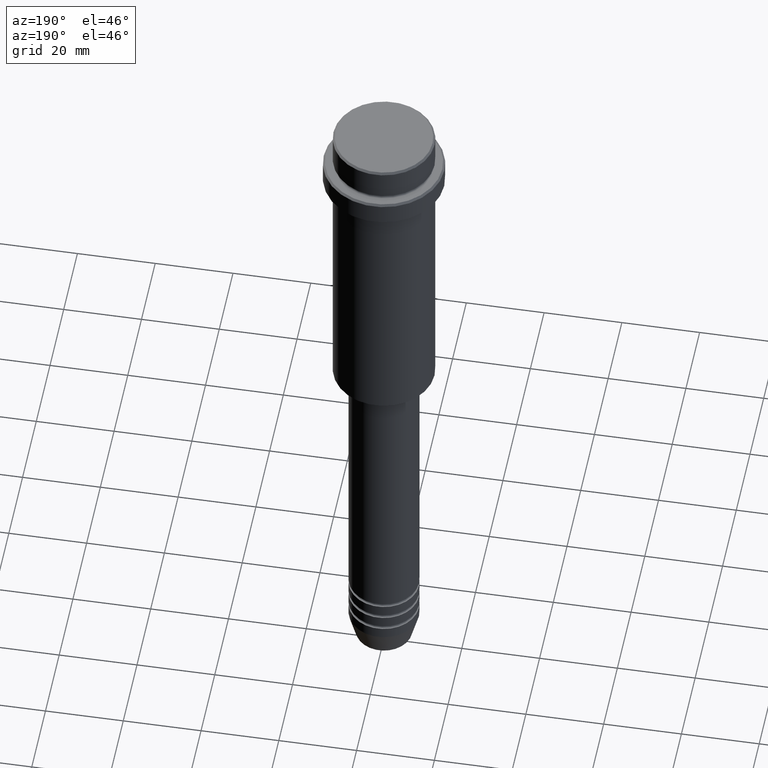
[diagram: clean part render]
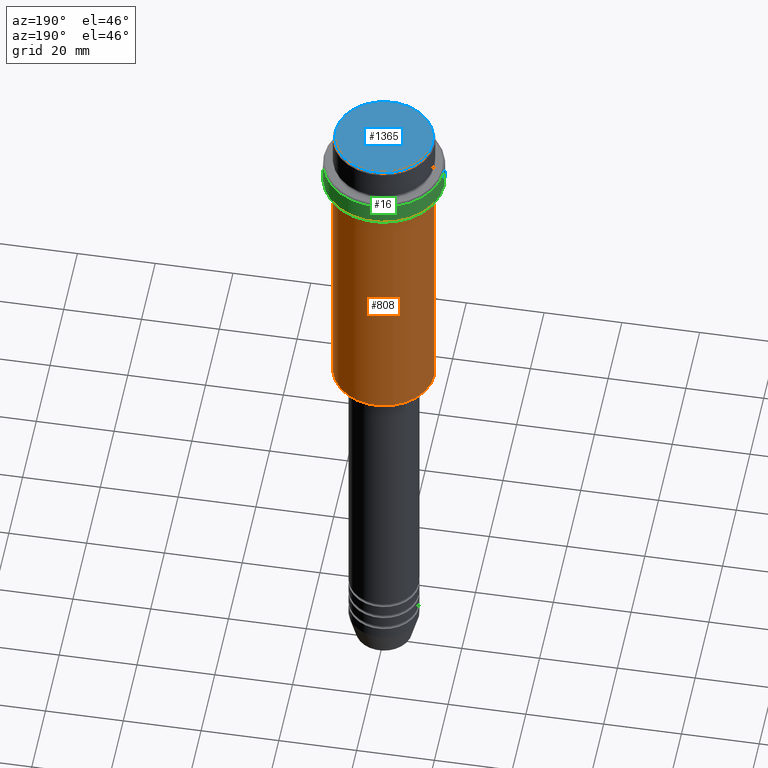
[diagram: same view with three faces highlighted in distinct colors, each labeled with its STEP entity id]
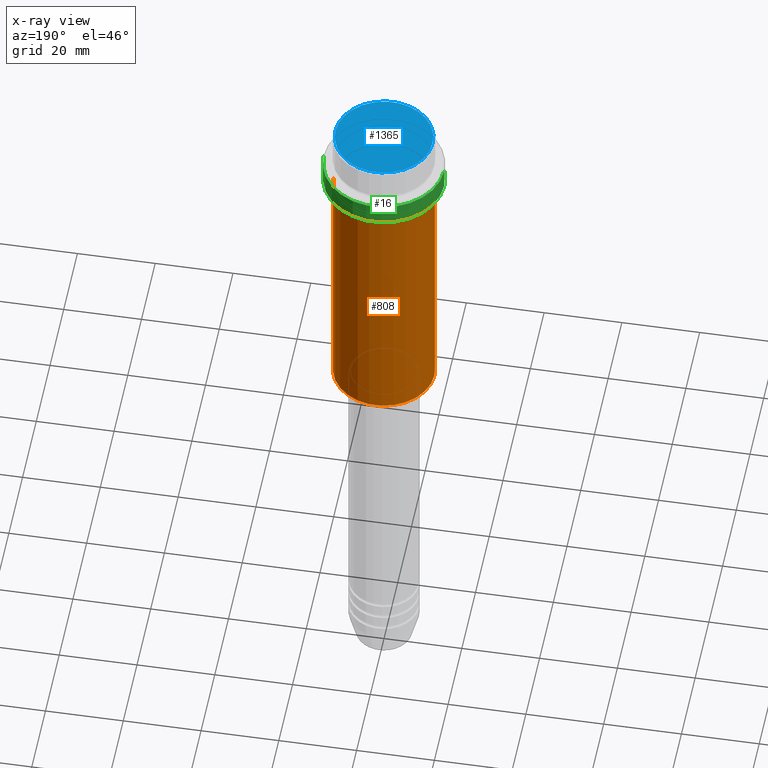
[diagram: x-ray of the same camera — body ghosted, the three highlighted faces saturated]
A machine part, auxiliary view with three faces highlighted in distinct colors.
The next image is the same camera in x-ray (body ghosted, the three faces saturated) — at least one of them is partly hidden behind the body in this view.
Their STEP definitions:

[orange] entity #808 — the highlighted cylindrical surface (partial cylindrical patch) has radius 13 mm, axis along (-0, -0, 1).
#32 = EDGE_CURVE ( 'NONE', #1057, #1030, #1251, .T. ) ;
#71 = VECTOR ( 'NONE', #259, 1000.000000000000000 ) ;
#95 = AXIS2_PLACEMENT_3D ( 'NONE', #1227, #1106, #782 ) ;
#259 = DIRECTION ( 'NONE',  ( -0.000000000000000000, -0.000000000000000000, 1.000000000000000000 ) ) ;
#293 = CIRCLE ( 'NONE', #1409, 13.00000000000000000 ) ;
#346 = ORIENTED_EDGE ( 'NONE', *, *, #960, .T. ) ;
#349 = CIRCLE ( 'NONE', #1112, 13.00000000000000000 ) ;
#362 = CARTESIAN_POINT ( 'NONE',  ( -13.00000000000000000, 1.592040838891559095E-15, 0.000000000000000000 ) ) ;
#375 = DIRECTION ( 'NONE',  ( -0.000000000000000000, -0.000000000000000000, 1.000000000000000000 ) ) ;
#424 = ORIENTED_EDGE ( 'NONE', *, *, #703, .F. ) ;
#438 = CARTESIAN_POINT ( 'NONE',  ( 13.00000000000000000, 0.000000000000000000, -84.50000000000000000 ) ) ;
#481 = CARTESIAN_POINT ( 'NONE',  ( 13.00000000000000000, 0.000000000000000000, -16.00000000000000000 ) ) ;
#574 = CYLINDRICAL_SURFACE ( 'NONE', #95, 13.00000000000000000 ) ;
#595 = LINE ( 'NONE', #1028, #1416 ) ;
#596 = VERTEX_POINT ( 'NONE', #481 ) ;
#597 = EDGE_CURVE ( 'NONE', #1113, #596, #595, .T. ) ;
#608 = DIRECTION ( 'NONE',  ( 1.000000000000000000, 0.000000000000000000, 0.000000000000000000 ) ) ;
#624 = CARTESIAN_POINT ( 'NONE',  ( -13.00000000000000000, 1.592040838891559095E-15, -16.00000000000000000 ) ) ;
#703 = EDGE_CURVE ( 'NONE', #596, #1030, #293, .T. ) ;
#718 = CARTESIAN_POINT ( 'NONE',  ( 0.000000000000000000, 0.000000000000000000, -16.00000000000000000 ) ) ;
#781 = EDGE_LOOP ( 'NONE', ( #346, #1017, #424, #1196 ) ) ;
#782 = DIRECTION ( 'NONE',  ( 1.000000000000000000, 0.000000000000000000, 0.000000000000000000 ) ) ;
#808 = ADVANCED_FACE ( 'NONE', ( #1352 ), #574, .T. ) ;
#825 = DIRECTION ( 'NONE',  ( -1.000000000000000000, 0.000000000000000000, 0.000000000000000000 ) ) ;
#882 = CARTESIAN_POINT ( 'NONE',  ( -13.00000000000000000, 1.592040838891559095E-15, -84.50000000000000000 ) ) ;
#960 = EDGE_CURVE ( 'NONE', #1113, #1057, #349, .T. ) ;
#1017 = ORIENTED_EDGE ( 'NONE', *, *, #32, .T. ) ;
#1028 = CARTESIAN_POINT ( 'NONE',  ( 13.00000000000000000, 0.000000000000000000, 0.000000000000000000 ) ) ;
#1030 = VERTEX_POINT ( 'NONE', #624 ) ;
#1057 = VERTEX_POINT ( 'NONE', #882 ) ;
#1106 = DIRECTION ( 'NONE',  ( -0.000000000000000000, -0.000000000000000000, 1.000000000000000000 ) ) ;
#1112 = AXIS2_PLACEMENT_3D ( 'NONE', #1266, #375, #825 ) ;
#1113 = VERTEX_POINT ( 'NONE', #438 ) ;
#1147 = DIRECTION ( 'NONE',  ( -0.000000000000000000, -0.000000000000000000, 1.000000000000000000 ) ) ;
#1196 = ORIENTED_EDGE ( 'NONE', *, *, #597, .F. ) ;
#1217 = DIRECTION ( 'NONE',  ( -0.000000000000000000, -0.000000000000000000, 1.000000000000000000 ) ) ;
#1227 = CARTESIAN_POINT ( 'NONE',  ( 0.000000000000000000, 0.000000000000000000, 0.000000000000000000 ) ) ;
#1251 = LINE ( 'NONE', #362, #71 ) ;
#1266 = CARTESIAN_POINT ( 'NONE',  ( 0.000000000000000000, 0.000000000000000000, -84.50000000000000000 ) ) ;
#1352 = FACE_OUTER_BOUND ( 'NONE', #781, .T. ) ;
#1409 = AXIS2_PLACEMENT_3D ( 'NONE', #718, #1147, #608 ) ;
#1416 = VECTOR ( 'NONE', #1217, 1000.000000000000000 ) ;

[blue] entity #1365 — the highlighted planar face has unit normal (0, -0, 1).
#59 = EDGE_CURVE ( 'NONE', #1218, #720, #116, .T. ) ;
#116 = CIRCLE ( 'NONE', #1025, 12.50000000000001243 ) ;
#177 = CARTESIAN_POINT ( 'NONE',  ( -12.50000000000001243, 0.000000000000000000, 0.000000000000000000 ) ) ;
#178 = DIRECTION ( 'NONE',  ( 1.000000000000000000, 0.000000000000000000, 0.000000000000000000 ) ) ;
#220 = DIRECTION ( 'NONE',  ( -0.000000000000000000, -0.000000000000000000, 1.000000000000000000 ) ) ;
#235 = ORIENTED_EDGE ( 'NONE', *, *, #902, .T. ) ;
#253 = DIRECTION ( 'NONE',  ( -0.000000000000000000, -0.000000000000000000, 1.000000000000000000 ) ) ;
#295 = DIRECTION ( 'NONE',  ( 1.000000000000000000, 0.000000000000000000, 0.000000000000000000 ) ) ;
#354 = CARTESIAN_POINT ( 'NONE',  ( 0.000000000000000000, 0.000000000000000000, 0.000000000000000000 ) ) ;
#401 = CIRCLE ( 'NONE', #1228, 12.50000000000001243 ) ;
#515 = FACE_OUTER_BOUND ( 'NONE', #1311, .T. ) ;
#537 = CARTESIAN_POINT ( 'NONE',  ( 12.50000000000001243, 1.561424668912876097E-15, 0.000000000000000000 ) ) ;
#696 = DIRECTION ( 'NONE',  ( 1.000000000000000000, 0.000000000000000000, 0.000000000000000000 ) ) ;
#720 = VERTEX_POINT ( 'NONE', #177 ) ;
#758 = ORIENTED_EDGE ( 'NONE', *, *, #59, .T. ) ;
#833 = CARTESIAN_POINT ( 'NONE',  ( 0.000000000000000000, 0.000000000000000000, 0.000000000000000000 ) ) ;
#902 = EDGE_CURVE ( 'NONE', #720, #1218, #401, .T. ) ;
#938 = PLANE ( 'NONE',  #1415 ) ;
#1025 = AXIS2_PLACEMENT_3D ( 'NONE', #1260, #220, #295 ) ;
#1037 = DIRECTION ( 'NONE',  ( 0.000000000000000000, -0.000000000000000000, 1.000000000000000000 ) ) ;
#1218 = VERTEX_POINT ( 'NONE', #537 ) ;
#1228 = AXIS2_PLACEMENT_3D ( 'NONE', #354, #253, #696 ) ;
#1260 = CARTESIAN_POINT ( 'NONE',  ( 0.000000000000000000, 0.000000000000000000, 0.000000000000000000 ) ) ;
#1311 = EDGE_LOOP ( 'NONE', ( #235, #758 ) ) ;
#1365 = ADVANCED_FACE ( 'NONE', ( #515 ), #938, .T. ) ;
#1415 = AXIS2_PLACEMENT_3D ( 'NONE', #833, #1037, #178 ) ;

[green] entity #16 — the highlighted cylindrical surface (partial cylindrical patch) has radius 15.5 mm, axis along (-0, -0, 1).
#16 = ADVANCED_FACE ( 'NONE', ( #725 ), #476, .T. ) ;
#39 = CARTESIAN_POINT ( 'NONE',  ( 15.50000000000000000, 0.000000000000000000, -9.500000000000012434 ) ) ;
#90 = DIRECTION ( 'NONE',  ( -0.000000000000000000, -0.000000000000000000, 1.000000000000000000 ) ) ;
#132 = CARTESIAN_POINT ( 'NONE',  ( 0.000000000000000000, 0.000000000000000000, -9.500000000000012434 ) ) ;
#167 = EDGE_CURVE ( 'NONE', #1263, #1407, #533, .T. ) ;
#328 = VERTEX_POINT ( 'NONE', #361 ) ;
#355 = CIRCLE ( 'NONE', #1154, 15.50000000000000000 ) ;
#361 = CARTESIAN_POINT ( 'NONE',  ( 15.50000000000000000, 0.000000000000000000, -15.00000000000000000 ) ) ;
#427 = DIRECTION ( 'NONE',  ( 0.000000000000000000, 0.000000000000000000, -1.000000000000000000 ) ) ;
#448 = DIRECTION ( 'NONE',  ( 1.000000000000000000, 0.000000000000000000, 0.000000000000000000 ) ) ;
#474 = CIRCLE ( 'NONE', #660, 15.50000000000000000 ) ;
#476 = CYLINDRICAL_SURFACE ( 'NONE', #681, 15.50000000000000000 ) ;
#484 = CARTESIAN_POINT ( 'NONE',  ( 0.000000000000000000, 0.000000000000000000, 0.000000000000000000 ) ) ;
#520 = LINE ( 'NONE', #1180, #1320 ) ;
#528 = EDGE_CURVE ( 'NONE', #1407, #830, #355, .T. ) ;
#533 = LINE ( 'NONE', #1067, #1115 ) ;
#535 = DIRECTION ( 'NONE',  ( -0.000000000000000000, -0.000000000000000000, 1.000000000000000000 ) ) ;
#593 = DIRECTION ( 'NONE',  ( 1.000000000000000000, 0.000000000000000000, 0.000000000000000000 ) ) ;
#660 = AXIS2_PLACEMENT_3D ( 'NONE', #1292, #780, #1212 ) ;
#681 = AXIS2_PLACEMENT_3D ( 'NONE', #484, #1150, #593 ) ;
#725 = FACE_OUTER_BOUND ( 'NONE', #1179, .T. ) ;
#780 = DIRECTION ( 'NONE',  ( -0.000000000000000000, -0.000000000000000000, 1.000000000000000000 ) ) ;
#786 = EDGE_CURVE ( 'NONE', #328, #830, #520, .T. ) ;
#830 = VERTEX_POINT ( 'NONE', #39 ) ;
#1001 = ORIENTED_EDGE ( 'NONE', *, *, #528, .T. ) ;
#1067 = CARTESIAN_POINT ( 'NONE',  ( -15.50000000000000000, 1.898202538678397557E-15, 0.000000000000000000 ) ) ;
#1115 = VECTOR ( 'NONE', #90, 1000.000000000000000 ) ;
#1150 = DIRECTION ( 'NONE',  ( -0.000000000000000000, -0.000000000000000000, 1.000000000000000000 ) ) ;
#1153 = CARTESIAN_POINT ( 'NONE',  ( -15.50000000000000000, 1.898202538678397557E-15, -9.500000000000012434 ) ) ;
#1154 = AXIS2_PLACEMENT_3D ( 'NONE', #132, #427, #448 ) ;
#1179 = EDGE_LOOP ( 'NONE', ( #1395, #1237, #1001, #1182 ) ) ;
#1180 = CARTESIAN_POINT ( 'NONE',  ( 15.50000000000000000, 0.000000000000000000, 0.000000000000000000 ) ) ;
#1182 = ORIENTED_EDGE ( 'NONE', *, *, #786, .F. ) ;
#1198 = CARTESIAN_POINT ( 'NONE',  ( -15.50000000000000000, 1.898202538678397557E-15, -15.00000000000000000 ) ) ;
#1212 = DIRECTION ( 'NONE',  ( 1.000000000000000000, 0.000000000000000000, 0.000000000000000000 ) ) ;
#1237 = ORIENTED_EDGE ( 'NONE', *, *, #167, .T. ) ;
#1263 = VERTEX_POINT ( 'NONE', #1198 ) ;
#1279 = EDGE_CURVE ( 'NONE', #328, #1263, #474, .T. ) ;
#1292 = CARTESIAN_POINT ( 'NONE',  ( 0.000000000000000000, 0.000000000000000000, -15.00000000000000000 ) ) ;
#1320 = VECTOR ( 'NONE', #535, 1000.000000000000000 ) ;
#1395 = ORIENTED_EDGE ( 'NONE', *, *, #1279, .T. ) ;
#1407 = VERTEX_POINT ( 'NONE', #1153 ) ;